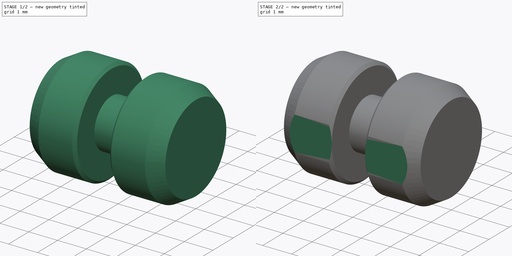
[diagram: build sequence overview — one tinted view per stage of 2, left to right]
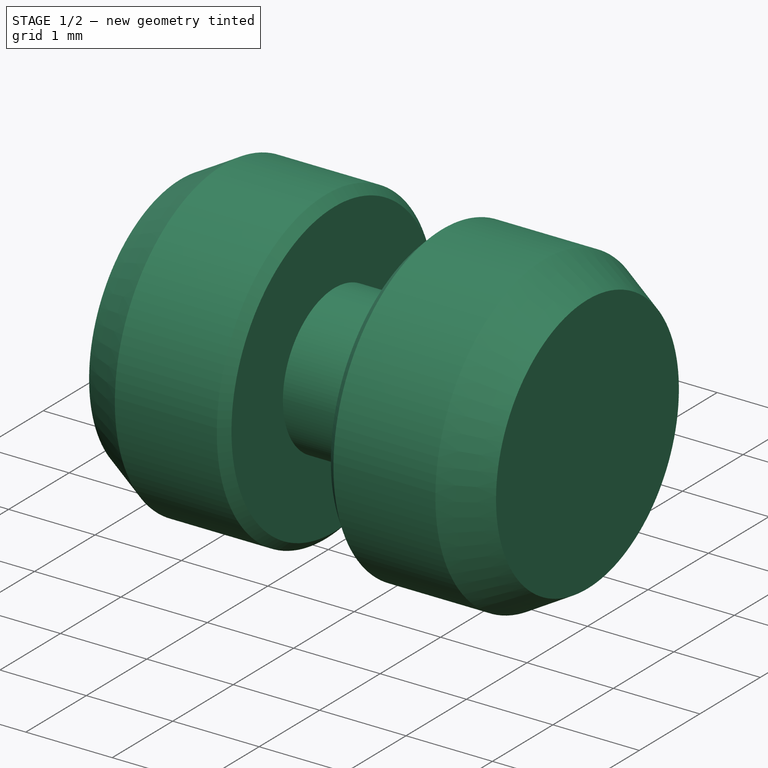
[diagram: stage 1 of 2 — iso view after this stage's code; geometry added in this stage tinted green]
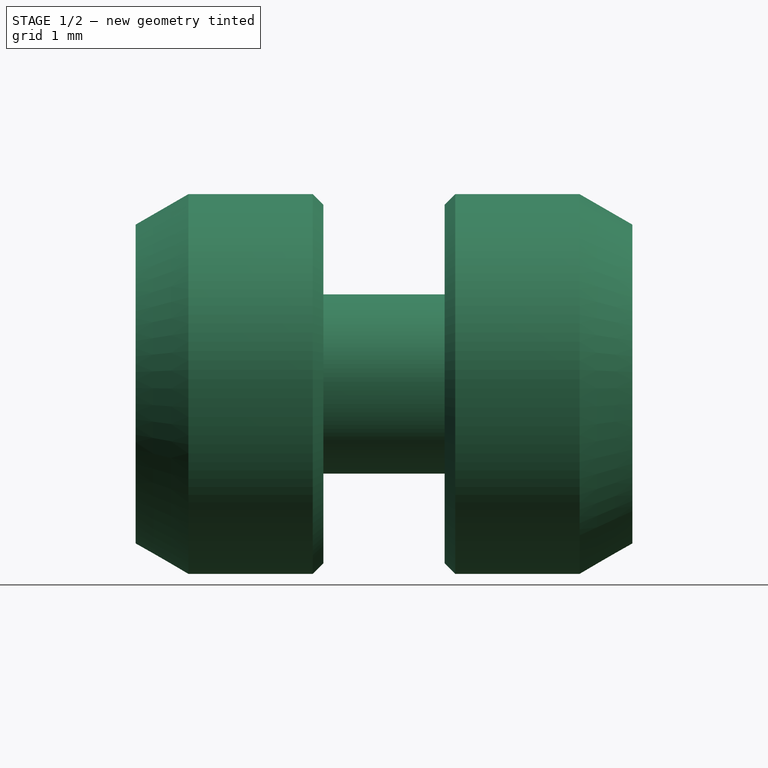
[diagram: stage 1 of 2 — front view after this stage's code; geometry added in this stage tinted green]
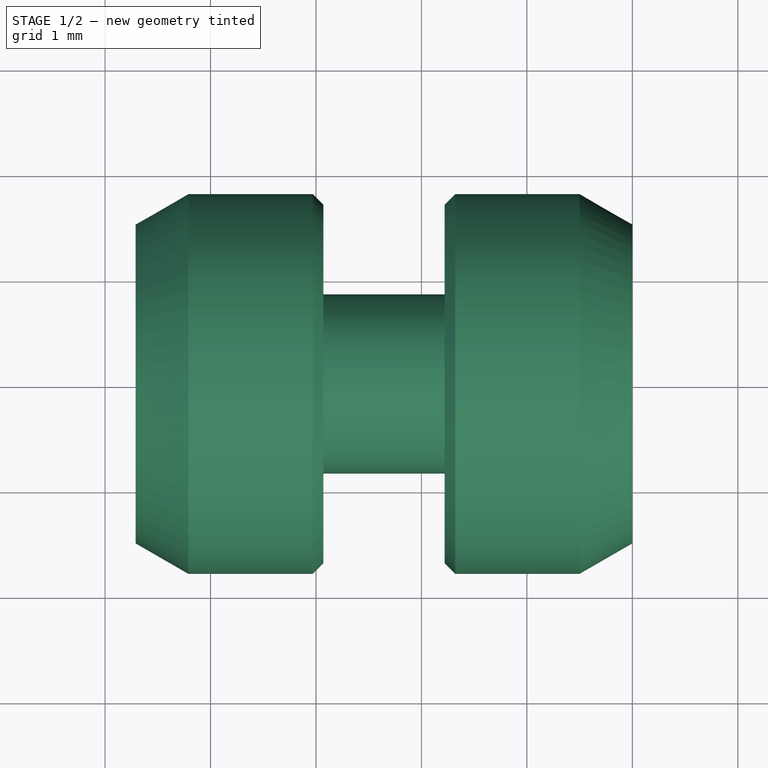
[diagram: stage 1 of 2 — top view after this stage's code; geometry added in this stage tinted green]
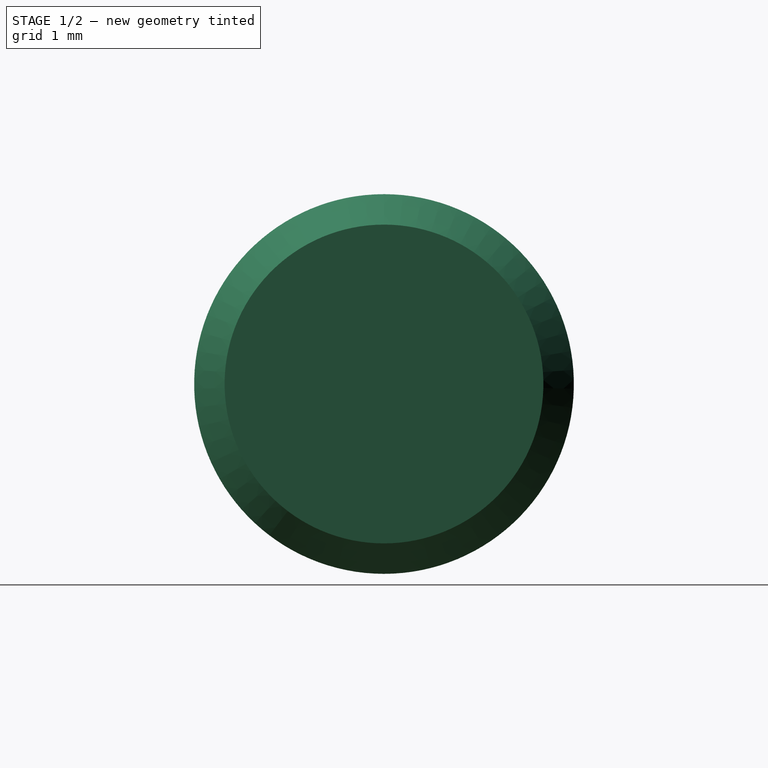
[diagram: stage 1 of 2 — right view after this stage's code; geometry added in this stage tinted green]
FCSTD DOCUMENT  (FreeCAD 1.0R39319 (Git))
Label: PLASTIC-MAPMODE
License: All rights reserved
LicenseURL: https://en.wikipedia.org/wiki/All_rights_reserved
objects: Sketcher::SketchObject×2, PartDesign::Revolution×1, PartDesign::CoordinateSystem×1, PartDesign::Pocket×1, PartDesign::Body×1
note: 12 computed .brp shape members not serialized (recipe doc carries the construction recipe); baked Part::Feature solids carry a one-line shape summary decoded from their .brp

FEATURE [Sketcher::SketchObject] Sketch
  ArcFitTolerance = 1e-06
  AttachmentSupport = -> [XZ_Plane]
  FullyConstrained = true
  MakeInternals = false
  MapMode = 5
  Placement = pos=(0,0,0) rot=(1,0,0;1.5708rad)
  sketch-geometry (19):
    g0: LineSegment StartX=0 StartY=0 StartZ=0 EndX=0 EndY=1.51132 EndZ=0
    g1: LineSegment StartX=-0.5 StartY=1.8 StartZ=0 EndX=-1.68 EndY=1.8 EndZ=0
    g2: LineSegment StartX=-1.78 StartY=1.7 StartZ=0 EndX=-1.78 EndY=0.85 EndZ=0
    g3: LineSegment StartX=-1.78 StartY=0.85 StartZ=0 EndX=-2.93 EndY=0.85 EndZ=0
    g4: LineSegment StartX=-3.03 StartY=1.8 StartZ=0 EndX=-4.21 EndY=1.8 EndZ=0
    g5: LineSegment StartX=-4.71 StartY=1.51132 StartZ=0 EndX=-4.71 EndY=0 EndZ=0
    g6: LineSegment StartX=-4.71 StartY=0 StartZ=0 EndX=0 EndY=0 EndZ=0
    g7: LineSegment StartX=-4.71 StartY=1.51132 StartZ=0 EndX=-4.21 EndY=1.8 EndZ=0
    g8: LineSegment StartX=-2.93 StartY=0.85 StartZ=0 EndX=-2.93 EndY=1.7 EndZ=0
    g9: LineSegment StartX=-3.03 StartY=1.8 StartZ=0 EndX=-2.93 EndY=1.7 EndZ=0
    g10: LineSegment StartX=-1.68 StartY=1.8 StartZ=0 EndX=-1.78 EndY=1.7 EndZ=0
    g11: LineSegment [constr] StartX=-2.855 StartY=0 StartZ=0 EndX=-1.855 EndY=0 EndZ=0
    g12: LineSegment [constr] StartX=-1.855 StartY=0 StartZ=0 EndX=-1.855 EndY=1.8 EndZ=0
    g13: LineSegment [constr] StartX=-1.855 StartY=1.8 StartZ=0 EndX=-2.855 EndY=1.8 EndZ=0
    g14: LineSegment [constr] StartX=-2.855 StartY=1.8 StartZ=0 EndX=-2.855 EndY=0 EndZ=0
    g15: LineSegment [constr] StartX=-2.93 StartY=0.85 StartZ=0 EndX=-2.855 EndY=0 EndZ=0
    g16: LineSegment [constr] StartX=-1.855 StartY=0 StartZ=0 EndX=-1.78 EndY=0.85 EndZ=0
    g17: GeomPoint [constr] X=0 Y=1.8 Z=0
    g18: LineSegment StartX=0 StartY=1.51132 StartZ=0 EndX=-0.5 EndY=1.8 EndZ=0
  constraints (57):
    c: Coincident(g0,g-1)
    c: PointOnObject(g17,g-2)
    c: Horizontal(g1)
    c: Vertical(g2)
    c: Coincident(g3,g2)
    c: Horizontal(g3)
    c: Horizontal(g4)
    c: Vertical(g5)
    c: Coincident(g6,g5)
    c: Coincident(g6,g0)
    c: Horizontal(g6)
    c: DistanceY(g0,g3) = 0.85
    c: Coincident(g4,g7)
    c: Coincident(g5,g7)
    c: DistanceX(g3,g3) = 1.15
    c: DistanceY(g0,g17) = 1.8
    c: Coincident(g8,g3)
    c: Vertical(g8)
    c: Equal(g9,g10)
    c: Angle(g4,g9) = 2.35619
    c: Angle(g10,g1) = 2.35619
    c: Coincident(g4,g9)
    c: Coincident(g8,g9)
    c: Coincident(g2,g10)
    c: Coincident(g1,g10)
    c: DistanceY(g5,g4) = 1.8
    c: Coincident(g11,g12)
    c: Coincident(g12,g13)
    c: Coincident(g13,g14)
    c: Coincident(g14,g11)
    c: Horizontal(g11)
    c: Horizontal(g13)
    c: Vertical(g12)
    c: Vertical(g14)
    c: PointOnObject(g11,g6)
    c: DistanceX(g13,g13) = 1
    c: DistanceX(g12,g2) = 0.075
    c: DistanceX(g8,g13) = 0.075
    c: Coincident(g15,g3)
    c: Coincident(g15,g11)
    c: Coincident(g16,g11)
    c: Coincident(g16,g2)
    c: Equal(g16,g15)
    c: PointOnObject(g17,g0)
    c: PointOnObject(g17,g1)
    c: Coincident(g18,g0)
    c: Coincident(g18,g1)
    c: DistanceX(g6,g6) = 4.71
    c: PointOnObject(g12,g1)
    c: Distance(g0,g2) = 1.78
    c: Distance(g8,g5) = 1.78
    c: Distance(g8,g5) = 1.78
    c: DistanceX(g18,g18) = 0.5
    c: Angle(g1,g18) = 2.61799
    c: Equal(g7,g18)
    c: Angle(g7,g4) = 2.61799
    c: DistanceX(g9,g9) = 0.1
FEATURE [PartDesign::Revolution] Revolution
  Angle = 360
  Angle2 = 60
  Axis = (1,0,0)
  Base = (0,0,0)
  Placement = pos=(0,0,0) rot=(1,0,0;1.5708rad)
  Profile = -> Sketch
  ReferenceAxis = -> Sketch [H_Axis]
  Refine = true
  Suppressed = false
  Type = 0
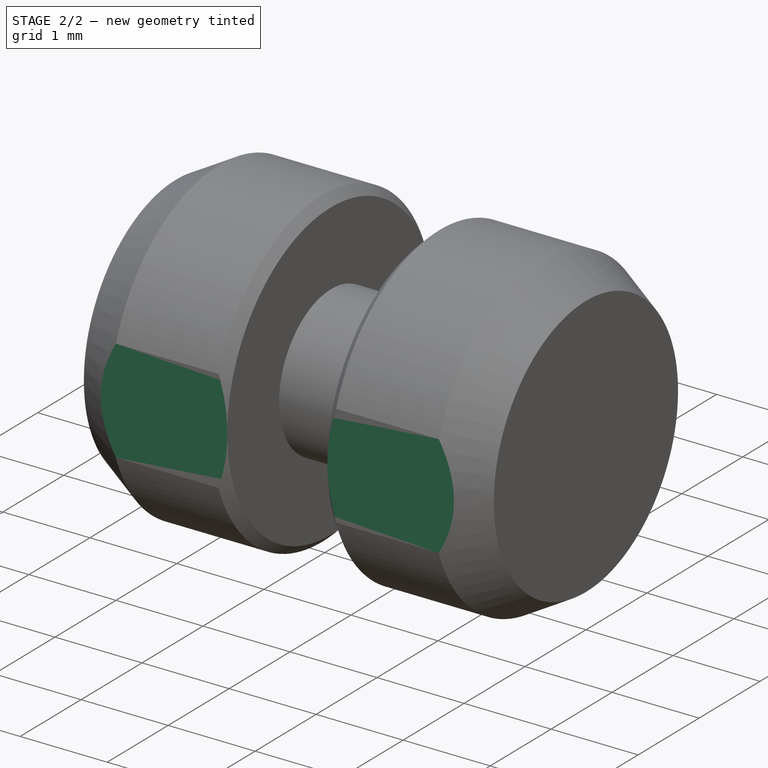
[diagram: stage 2 of 2 — iso view after this stage's code; geometry added in this stage tinted green]
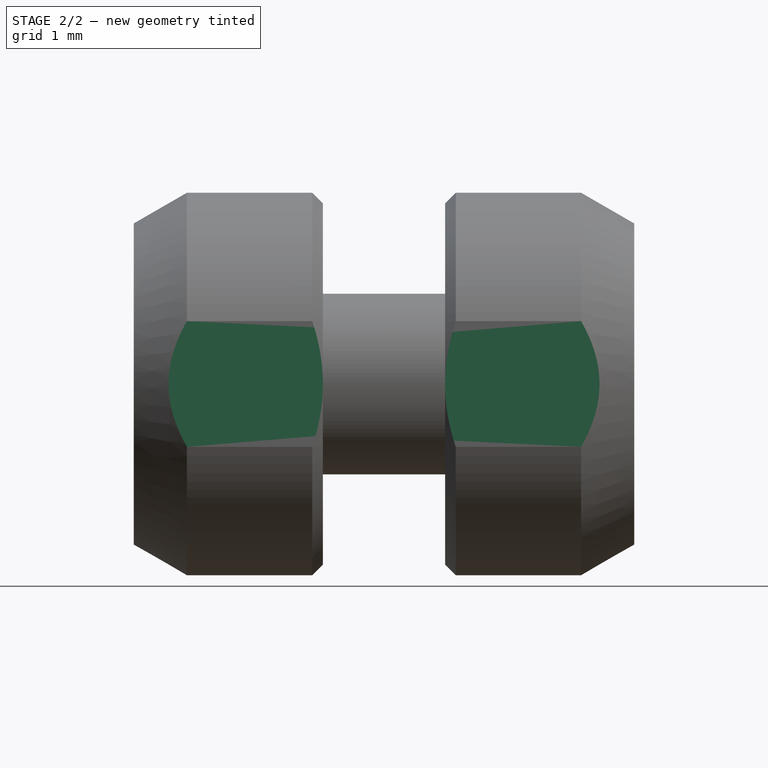
[diagram: stage 2 of 2 — front view after this stage's code; geometry added in this stage tinted green]
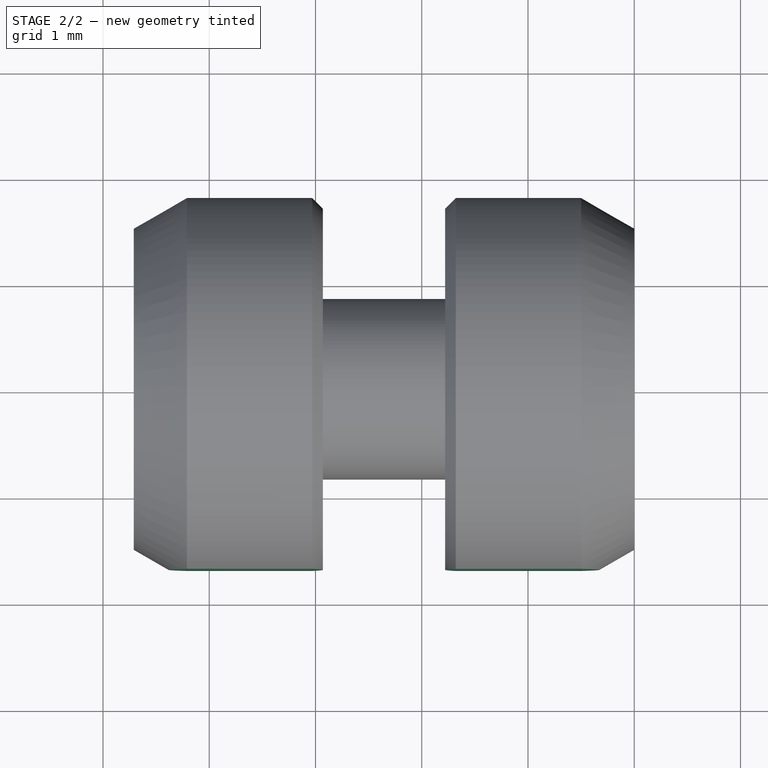
[diagram: stage 2 of 2 — top view after this stage's code; geometry added in this stage tinted green]
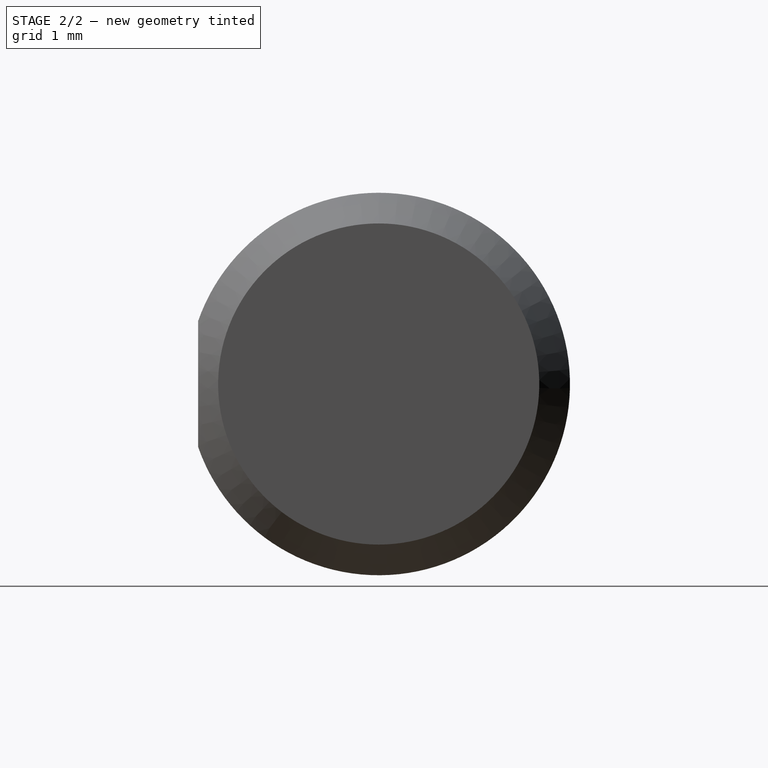
[diagram: stage 2 of 2 — right view after this stage's code; geometry added in this stage tinted green]
FEATURE [Sketcher::SketchObject] Sketch001
  ArcFitTolerance = 1e-06
  AttachmentSupport = -> [XY_Plane]
  FullyConstrained = true
  MakeInternals = false
  MapMode = 5
  sketch-geometry (4):
    g0: LineSegment StartX=-6 StartY=-1.7 StartZ=0 EndX=-6 EndY=-3.7 EndZ=0
    g1: LineSegment StartX=-6 StartY=-3.7 StartZ=0 EndX=0 EndY=-3.7 EndZ=0
    g2: LineSegment StartX=0 StartY=-3.7 StartZ=0 EndX=0 EndY=-1.7 EndZ=0
    g3: LineSegment StartX=0 StartY=-1.7 StartZ=0 EndX=-6 EndY=-1.7 EndZ=0
  constraints (12):
    c: Coincident(g0,g1)
    c: Coincident(g1,g2)
    c: Coincident(g2,g3)
    c: Coincident(g3,g0)
    c: Vertical(g0)
    c: Vertical(g2)
    c: Horizontal(g1)
    c: Horizontal(g3)
    c: PointOnObject(g1,g-2)
    c: DistanceY(g2,g2) = 2
    c: DistanceY(g2,g-1) = 1.7
    c: DistanceX(g3,g3) = 6
FEATURE [PartDesign::CoordinateSystem] LCS_1
  AttacherType = Attacher::AttachEngine3D
  MapMode = 45
  Placement = pos=(-2.35,1e-16,-4e-16) rot=(0.57735,0.57735,0.57735;2.0944rad)
FEATURE [PartDesign::Pocket] Pocket
  BaseFeature = -> Revolution
  Direction = (0,0,-1)
  Length = 10
  Length2 = 5
  Midplane = true
  Placement = pos=(0,0,0) rot=(1,0,0;1.5708rad)
  Profile = -> Sketch001
  ReferenceAxis = -> Sketch001 [N_Axis]
  Refine = true
  Suppressed = false
  Type = 0
FEATURE [PartDesign::Body] Body  label="PLASTIC-MAPMODE"
  AllowCompound = false
  Group = -> [Sketch,Revolution,Sketch001,LCS_1,Pocket]
  Origin = -> Origin
  Tip = -> Pocket
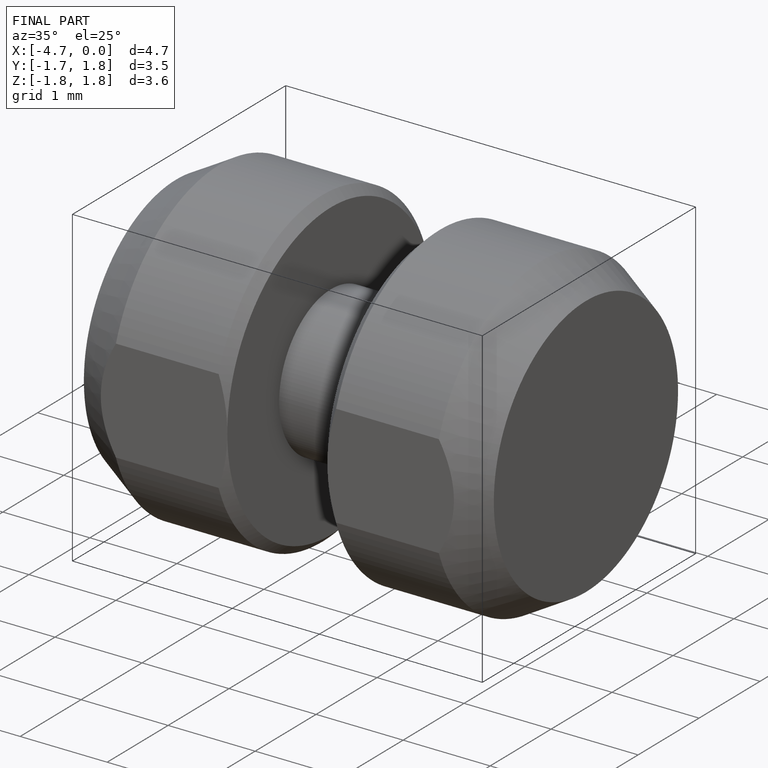
[diagram: finished part — iso view with bounding-box wireframe]
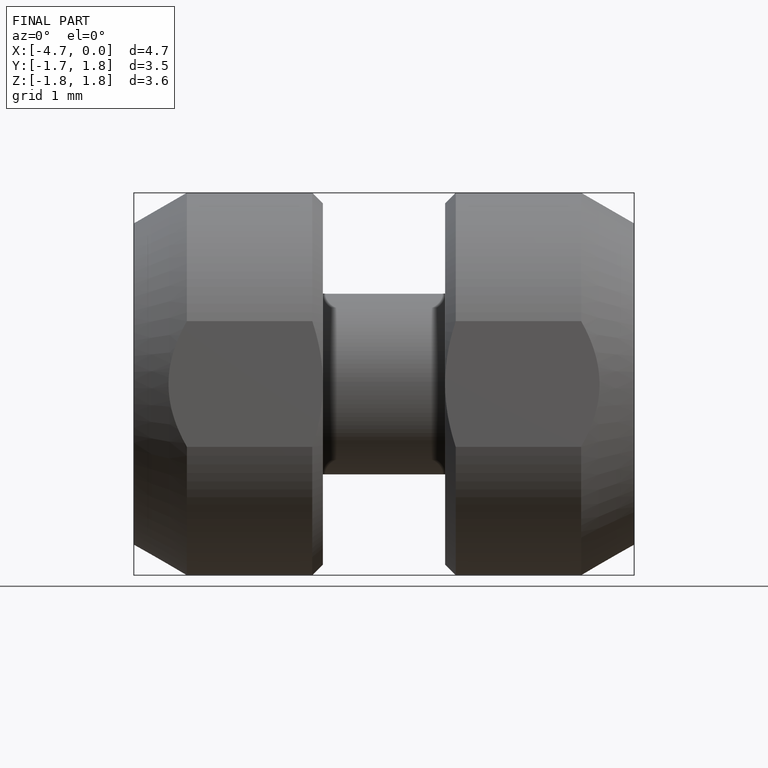
[diagram: finished part — front view with bounding-box wireframe]
